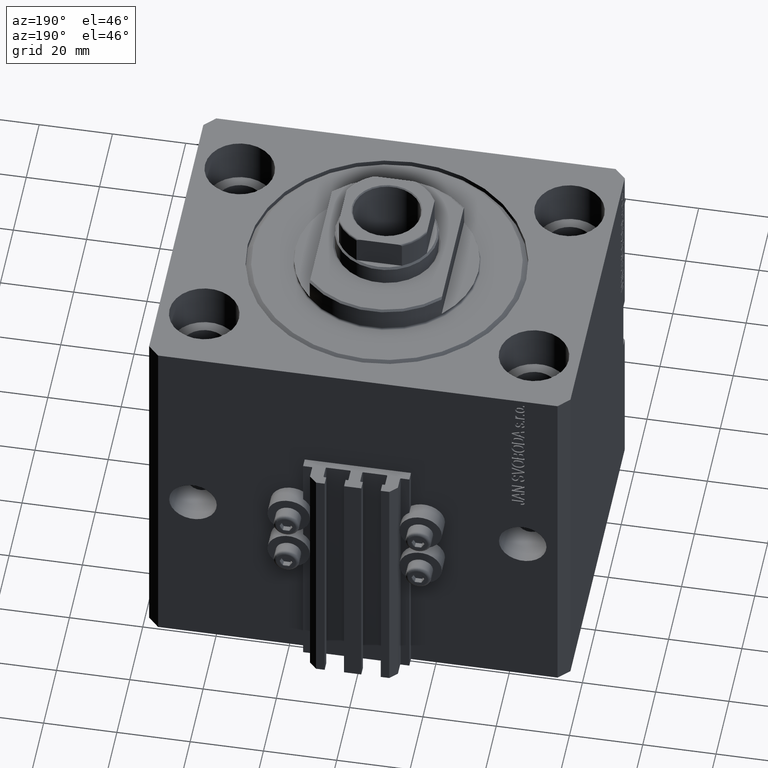
[diagram: clean part render]
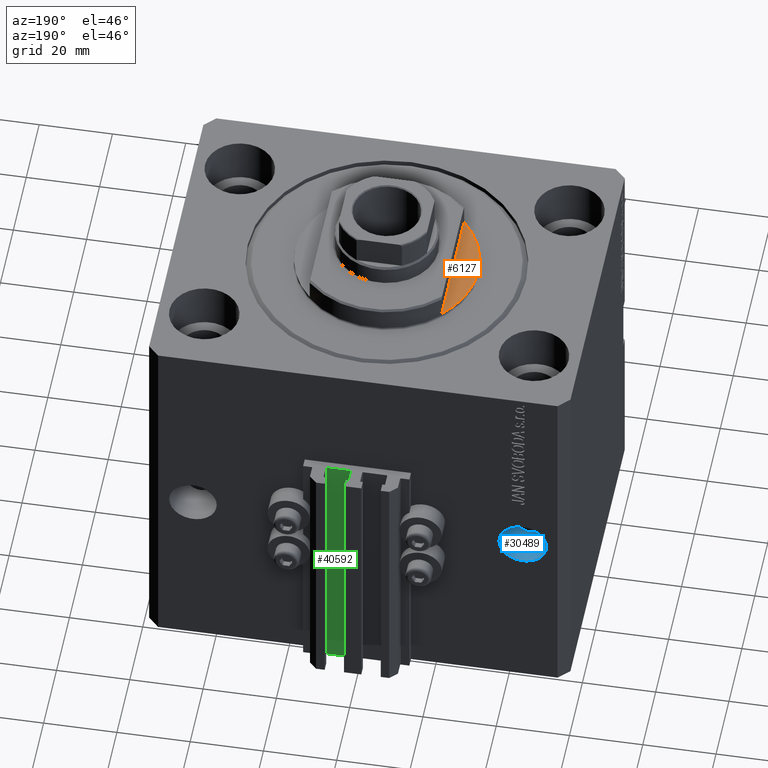
[diagram: same view with three faces highlighted in distinct colors, each labeled with its STEP entity id]
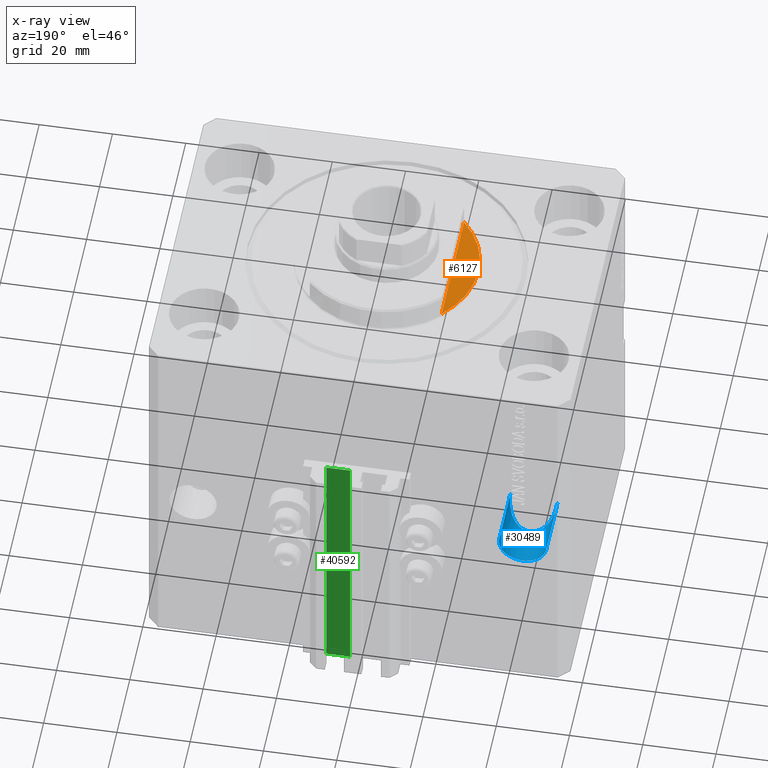
[diagram: x-ray of the same camera — body ghosted, the three highlighted faces saturated]
A machine part, auxiliary view with three faces highlighted in distinct colors.
The next image is the same camera in x-ray (body ghosted, the three faces saturated) — at least one of them is partly hidden behind the body in this view.
Their STEP definitions:

[orange] entity #6127 — the highlighted planar face has unit normal (0, 0, 1).
#2602 = CARTESIAN_POINT ( 'NONE',  ( 0.000000000000000000, 0.000000000000000000, -1.000000000000000000 ) ) ;
#3078 = VECTOR ( 'NONE', #46689, 1000.000000000000000 ) ;
#3188 = CARTESIAN_POINT ( 'NONE',  ( 18.00000000000000000, 17.34935157289747920, -1.000000000000000000 ) ) ;
#6046 = DIRECTION ( 'NONE',  ( -1.000000000000000000, 0.000000000000000000, 0.000000000000000000 ) ) ;
#6127 = ADVANCED_FACE ( 'NONE', ( #11865 ), #40681, .T. ) ;
#7642 = ORIENTED_EDGE ( 'NONE', *, *, #23207, .T. ) ;
#7947 = CARTESIAN_POINT ( 'NONE',  ( 25.00000000000000000, 0.000000000000000000, -1.000000000000000000 ) ) ;
#8933 = AXIS2_PLACEMENT_3D ( 'NONE', #2602, #17403, #6046 ) ;
#11865 = FACE_OUTER_BOUND ( 'NONE', #20782, .T. ) ;
#12342 = VERTEX_POINT ( 'NONE', #20032 ) ;
#13358 = VERTEX_POINT ( 'NONE', #7947 ) ;
#13698 = CARTESIAN_POINT ( 'NONE',  ( 0.000000000000000000, 0.000000000000000000, -1.000000000000000000 ) ) ;
#14584 = DIRECTION ( 'NONE',  ( 1.000000000000000000, 0.000000000000000000, 0.000000000000000000 ) ) ;
#15529 = AXIS2_PLACEMENT_3D ( 'NONE', #33294, #48318, #14584 ) ;
#16826 = CIRCLE ( 'NONE', #38849, 25.00000000000000000 ) ;
#17403 = DIRECTION ( 'NONE',  ( 0.000000000000000000, 0.000000000000000000, -1.000000000000000000 ) ) ;
#20032 = CARTESIAN_POINT ( 'NONE',  ( 18.00000000000000000, -17.34935157289747920, -1.000000000000000000 ) ) ;
#20782 = EDGE_LOOP ( 'NONE', ( #7642, #23847, #40088 ) ) ;
#22572 = VERTEX_POINT ( 'NONE', #3188 ) ;
#23207 = EDGE_CURVE ( 'NONE', #22572, #13358, #38821, .T. ) ;
#23847 = ORIENTED_EDGE ( 'NONE', *, *, #27656, .T. ) ;
#24533 = DIRECTION ( 'NONE',  ( -1.000000000000000000, 0.000000000000000000, 0.000000000000000000 ) ) ;
#24544 = CARTESIAN_POINT ( 'NONE',  ( 18.00000000000000000, -41.24318125460256113, -1.000000000000000000 ) ) ;
#27656 = EDGE_CURVE ( 'NONE', #13358, #12342, #16826, .T. ) ;
#33294 = CARTESIAN_POINT ( 'NONE',  ( 0.000000000000000000, 0.000000000000000000, -1.000000000000000000 ) ) ;
#36100 = DIRECTION ( 'NONE',  ( 0.000000000000000000, 0.000000000000000000, -1.000000000000000000 ) ) ;
#38821 = CIRCLE ( 'NONE', #8933, 25.00000000000000000 ) ;
#38849 = AXIS2_PLACEMENT_3D ( 'NONE', #13698, #36100, #24533 ) ;
#40088 = ORIENTED_EDGE ( 'NONE', *, *, #42209, .F. ) ;
#40470 = LINE ( 'NONE', #24544, #3078 ) ;
#40681 = PLANE ( 'NONE',  #15529 ) ;
#42209 = EDGE_CURVE ( 'NONE', #22572, #12342, #40470, .T. ) ;
#46689 = DIRECTION ( 'NONE',  ( 0.000000000000000000, -1.000000000000000000, -0.000000000000000000 ) ) ;
#48318 = DIRECTION ( 'NONE',  ( 0.000000000000000000, 0.000000000000000000, -1.000000000000000000 ) ) ;

[blue] entity #30489 — the highlighted cylindrical surface (edge-blend (fillet) strip) has radius 6.5 mm, axis along (0, -1, 0).
#2802 = FACE_OUTER_BOUND ( 'NONE', #40886, .T. ) ;
#3574 = VECTOR ( 'NONE', #4493, 1000.000000000000000 ) ;
#4493 = DIRECTION ( 'NONE',  ( 1.101411730780568590E-16, -1.000000000000000000, -0.000000000000000000 ) ) ;
#5759 = DIRECTION ( 'NONE',  ( 1.101411730780568590E-16, -1.000000000000000000, -0.000000000000000000 ) ) ;
#6460 = VERTEX_POINT ( 'NONE', #36807 ) ;
#8561 = CARTESIAN_POINT ( 'NONE',  ( -38.50000000000000000, 27.50000000000000355, -55.00000000000001421 ) ) ;
#8847 = CARTESIAN_POINT ( 'NONE',  ( -51.49999999999999289, 45.00000000000000000, -55.00000000000001421 ) ) ;
#10196 = CARTESIAN_POINT ( 'NONE',  ( -51.50000000000000000, 40.50000000000000000, -68.00000000000000000 ) ) ;
#12616 = CARTESIAN_POINT ( 'NONE',  ( -38.49999999999999289, 53.00000000000002842, -55.00000000000001421 ) ) ;
#14447 = VECTOR ( 'NONE', #38035, 1000.000000000000000 ) ;
#17108 = CARTESIAN_POINT ( 'NONE',  ( -44.99999999999999289, 53.00000000000002842, -55.00000000000001421 ) ) ;
#22784 = CARTESIAN_POINT ( 'NONE',  ( -51.49999999999999289, 53.00000000000002842, -55.00000000000001421 ) ) ;
#23353 = EDGE_CURVE ( 'NONE', #43867, #29261, #48401, .T. ) ;
#24976 = CARTESIAN_POINT ( 'NONE',  ( -51.50000000000000000, 27.50000000000000355, -55.00000000000001421 ) ) ;
#24982 = EDGE_CURVE ( 'NONE', #34510, #29261, #31078, .T. ) ;
#25085 = ORIENTED_EDGE ( 'NONE', *, *, #23353, .T. ) ;
#25157 = AXIS2_PLACEMENT_3D ( 'NONE', #35858, #43262, #47191 ) ;
#26960 = CARTESIAN_POINT ( 'NONE',  ( -51.50000000000000000, 27.50000000000000355, -55.00000000000001421 ) ) ;
#29261 = VERTEX_POINT ( 'NONE', #26960 ) ;
#30489 = ADVANCED_FACE ( 'NONE', ( #2802 ), #46875, .F. ) ;
#30630 = EDGE_CURVE ( 'NONE', #6460, #34510, #31575, .T. ) ;
#31021 = ORIENTED_EDGE ( 'NONE', *, *, #44480, .T. ) ;
#31078 =( BOUNDED_CURVE ( )  B_SPLINE_CURVE ( 3, ( #36300, #43932, #10196, #24976 ),
 .UNSPECIFIED., .F., .F. ) 
 B_SPLINE_CURVE_WITH_KNOTS ( ( 4, 4 ),
 ( 1.570796326794896558, 4.712388980384689674 ),
 .UNSPECIFIED. ) 
 CURVE ( )  GEOMETRIC_REPRESENTATION_ITEM ( )  RATIONAL_B_SPLINE_CURVE ( ( 1.000000000000000000, 0.3333333333333333703, 0.3333333333333333703, 1.000000000000000000 ) ) 
 REPRESENTATION_ITEM ( '' )  );
#31575 = LINE ( 'NONE', #12616, #3574 ) ;
#34510 = VERTEX_POINT ( 'NONE', #8561 ) ;
#35858 = CARTESIAN_POINT ( 'NONE',  ( -44.99999999999999289, 45.00000000000000000, -55.00000000000001421 ) ) ;
#36055 = DIRECTION ( 'NONE',  ( 1.000000000000000000, 0.000000000000000000, 0.000000000000000000 ) ) ;
#36300 = CARTESIAN_POINT ( 'NONE',  ( -38.50000000000000000, 27.50000000000000355, -55.00000000000001421 ) ) ;
#36610 = AXIS2_PLACEMENT_3D ( 'NONE', #17108, #5759, #36055 ) ;
#36807 = CARTESIAN_POINT ( 'NONE',  ( -38.49999999999999289, 45.00000000000000000, -55.00000000000001421 ) ) ;
#38035 = DIRECTION ( 'NONE',  ( 1.101411730780568590E-16, -1.000000000000000000, -0.000000000000000000 ) ) ;
#39068 = ORIENTED_EDGE ( 'NONE', *, *, #24982, .F. ) ;
#40886 = EDGE_LOOP ( 'NONE', ( #31021, #25085, #39068, #46436 ) ) ;
#43262 = DIRECTION ( 'NONE',  ( -2.546383084002639322E-16, 1.000000000000000000, 0.000000000000000000 ) ) ;
#43867 = VERTEX_POINT ( 'NONE', #8847 ) ;
#43932 = CARTESIAN_POINT ( 'NONE',  ( -38.49999999999999289, 40.50000000000000000, -68.00000000000000000 ) ) ;
#44480 = EDGE_CURVE ( 'NONE', #6460, #43867, #44798, .T. ) ;
#44798 = CIRCLE ( 'NONE', #25157, 6.499999999999999112 ) ;
#46436 = ORIENTED_EDGE ( 'NONE', *, *, #30630, .F. ) ;
#46875 = CYLINDRICAL_SURFACE ( 'NONE', #36610, 6.499999999999999112 ) ;
#47191 = DIRECTION ( 'NONE',  ( -1.000000000000000000, 0.000000000000000000, 0.000000000000000000 ) ) ;
#48401 = LINE ( 'NONE', #22784, #14447 ) ;

[green] entity #40592 — the highlighted planar face has unit normal (0, 1, 0).
#599 = PLANE ( 'NONE',  #8479 ) ;
#989 = ORIENTED_EDGE ( 'NONE', *, *, #7389, .T. ) ;
#3751 = VERTEX_POINT ( 'NONE', #36482 ) ;
#6417 = EDGE_CURVE ( 'NONE', #45479, #3751, #45520, .T. ) ;
#7389 = EDGE_CURVE ( 'NONE', #38997, #3751, #18183, .T. ) ;
#7928 = ORIENTED_EDGE ( 'NONE', *, *, #39383, .T. ) ;
#8479 = AXIS2_PLACEMENT_3D ( 'NONE', #15623, #30638, #10103 ) ;
#10103 = DIRECTION ( 'NONE',  ( 0.000000000000000000, 0.000000000000000000, 1.000000000000000000 ) ) ;
#11801 = CARTESIAN_POINT ( 'NONE',  ( 8.199999999999999289, 46.99999999999998579, -33.00000000000000000 ) ) ;
#14457 = VERTEX_POINT ( 'NONE', #30216 ) ;
#14700 = ORIENTED_EDGE ( 'NONE', *, *, #6417, .F. ) ;
#15623 = CARTESIAN_POINT ( 'NONE',  ( 8.199999999999999289, 46.99999999999998579, -105.0000000000000000 ) ) ;
#17554 = CARTESIAN_POINT ( 'NONE',  ( 8.199999999999999289, 46.99999999999998579, -105.0000000000000000 ) ) ;
#18183 = LINE ( 'NONE', #29743, #19356 ) ;
#19356 = VECTOR ( 'NONE', #44752, 1000.000000000000000 ) ;
#21201 = FACE_OUTER_BOUND ( 'NONE', #44351, .T. ) ;
#22622 = CARTESIAN_POINT ( 'NONE',  ( 8.199999999999999289, 46.99999999999998579, -105.0000000000000000 ) ) ;
#28315 = VECTOR ( 'NONE', #37638, 1000.000000000000000 ) ;
#29743 = CARTESIAN_POINT ( 'NONE',  ( 1.800000000000000933, 46.99999999999998579, -105.0000000000000000 ) ) ;
#29850 = DIRECTION ( 'NONE',  ( -1.000000000000000000, 0.000000000000000000, 0.000000000000000000 ) ) ;
#30019 = LINE ( 'NONE', #22622, #28315 ) ;
#30216 = CARTESIAN_POINT ( 'NONE',  ( 8.199999999999999289, 46.99999999999998579, -105.0000000000000000 ) ) ;
#30638 = DIRECTION ( 'NONE',  ( 0.000000000000000000, 1.000000000000000000, -0.000000000000000000 ) ) ;
#31003 = ORIENTED_EDGE ( 'NONE', *, *, #44179, .F. ) ;
#32568 = LINE ( 'NONE', #17554, #39919 ) ;
#36482 = CARTESIAN_POINT ( 'NONE',  ( 1.800000000000000933, 46.99999999999998579, -33.00000000000000000 ) ) ;
#37638 = DIRECTION ( 'NONE',  ( 0.000000000000000000, 0.000000000000000000, 1.000000000000000000 ) ) ;
#38997 = VERTEX_POINT ( 'NONE', #44674 ) ;
#39383 = EDGE_CURVE ( 'NONE', #14457, #38997, #32568, .T. ) ;
#39812 = CARTESIAN_POINT ( 'NONE',  ( 8.199999999999999289, 46.99999999999998579, -33.00000000000000000 ) ) ;
#39919 = VECTOR ( 'NONE', #29850, 1000.000000000000000 ) ;
#40592 = ADVANCED_FACE ( 'NONE', ( #21201 ), #599, .T. ) ;
#44179 = EDGE_CURVE ( 'NONE', #14457, #45479, #30019, .T. ) ;
#44351 = EDGE_LOOP ( 'NONE', ( #14700, #31003, #7928, #989 ) ) ;
#44515 = VECTOR ( 'NONE', #46237, 1000.000000000000000 ) ;
#44674 = CARTESIAN_POINT ( 'NONE',  ( 1.800000000000000933, 46.99999999999998579, -105.0000000000000000 ) ) ;
#44752 = DIRECTION ( 'NONE',  ( 0.000000000000000000, 0.000000000000000000, 1.000000000000000000 ) ) ;
#45479 = VERTEX_POINT ( 'NONE', #39812 ) ;
#45520 = LINE ( 'NONE', #11801, #44515 ) ;
#46237 = DIRECTION ( 'NONE',  ( -1.000000000000000000, 0.000000000000000000, 0.000000000000000000 ) ) ;